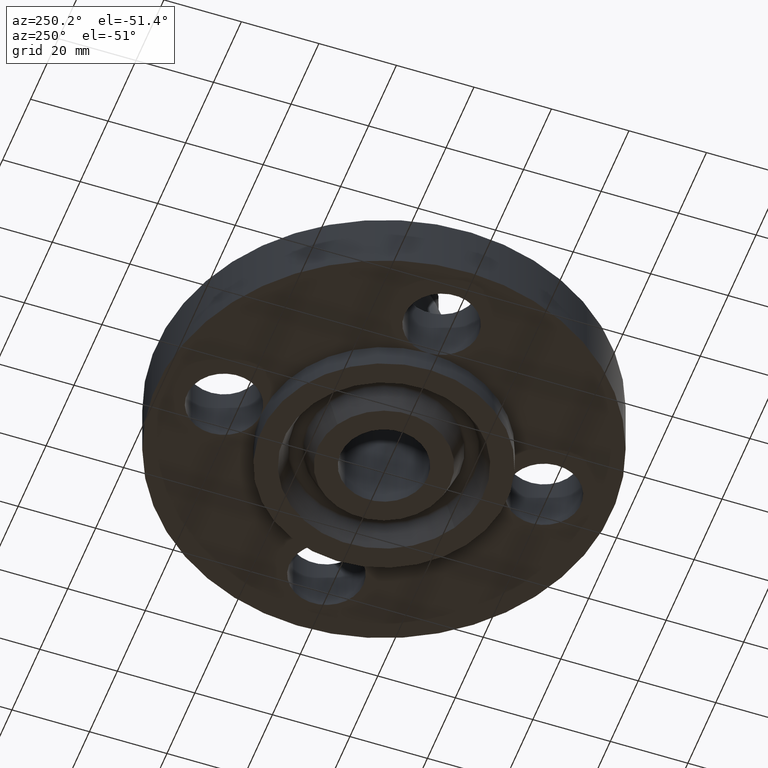
[diagram: clean part render]
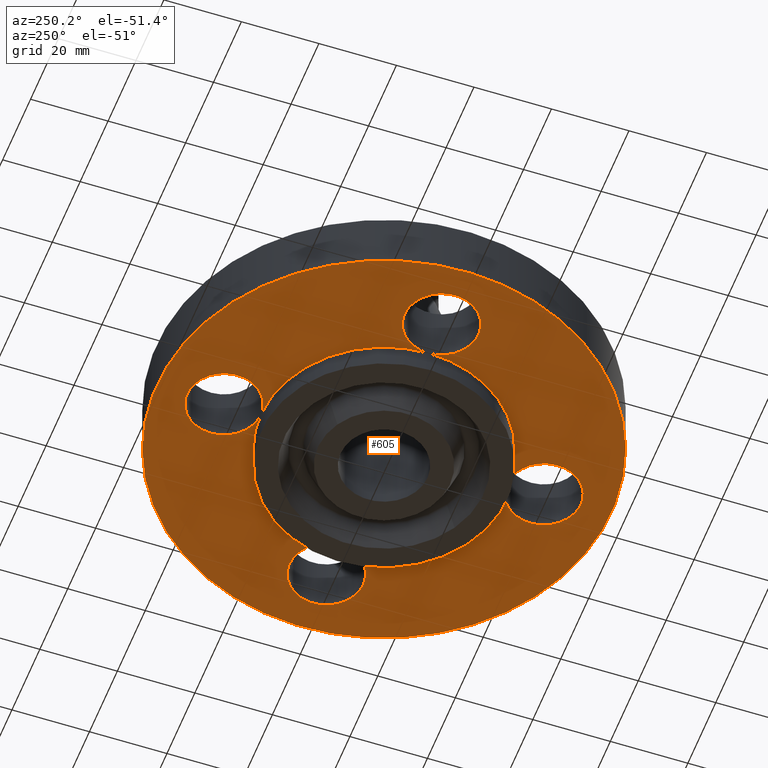
[diagram: same view with one face highlighted and labeled with its STEP entity id]
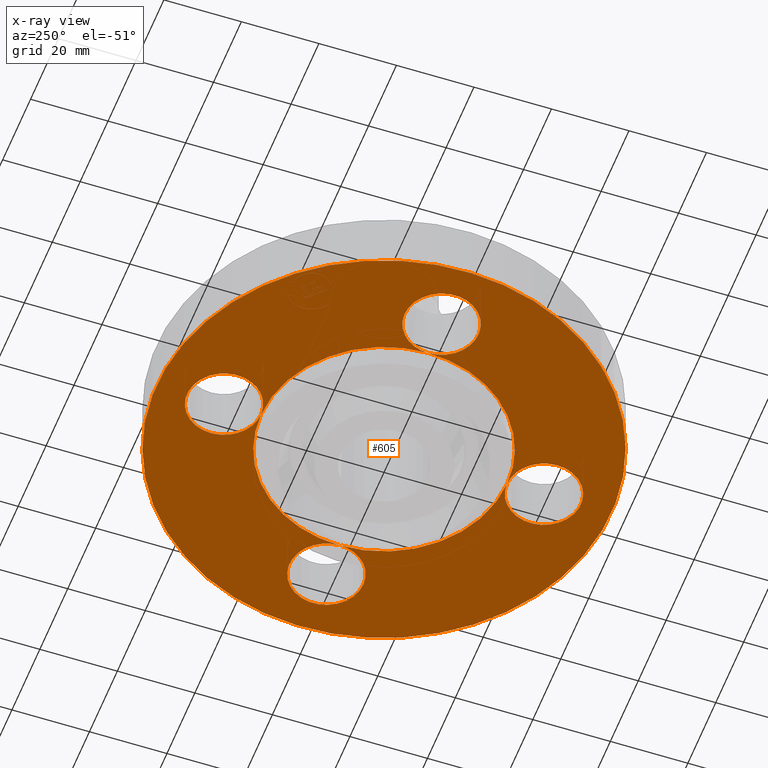
[diagram: x-ray of the same camera — body ghosted, the highlighted face saturated]
A machine part, auxiliary view. The second image highlights one B-rep face of the part: STEP entity #605.
The next image is the same camera in x-ray: the body ghosted, the highlighted face saturated — about 0% of this face is hidden behind the body in this view.
In plain terms, the highlighted planar face has unit normal (0, 0, -1).
Its self-contained STEP definition (entity closure, byte-faithful):
#51=AXIS2_PLACEMENT_3D('Circle Axis2P3D',#49,#50,$) ;
#77=AXIS2_PLACEMENT_3D('Circle Axis2P3D',#75,#76,$) ;
#84=AXIS2_PLACEMENT_3D('Circle Axis2P3D',#82,#83,$) ;
#107=AXIS2_PLACEMENT_3D('Circle Axis2P3D',#105,#106,$) ;
#142=AXIS2_PLACEMENT_3D('Circle Axis2P3D',#140,#141,$) ;
#455=AXIS2_PLACEMENT_3D('Circle Axis2P3D',#453,#454,$) ;
#462=AXIS2_PLACEMENT_3D('Circle Axis2P3D',#460,#461,$) ;
#467=AXIS2_PLACEMENT_3D('Circle Axis2P3D',#465,#466,$) ;
#493=AXIS2_PLACEMENT_3D('Circle Axis2P3D',#491,#492,$) ;
#500=AXIS2_PLACEMENT_3D('Circle Axis2P3D',#498,#499,$) ;
#507=AXIS2_PLACEMENT_3D('Circle Axis2P3D',#505,#506,$) ;
#522=AXIS2_PLACEMENT_3D('Plane Axis2P3D',#519,#520,#521) ;
#530=AXIS2_PLACEMENT_3D('Circle Axis2P3D',#528,#529,$) ;
#537=AXIS2_PLACEMENT_3D('Circle Axis2P3D',#535,#536,$) ;
#544=AXIS2_PLACEMENT_3D('Circle Axis2P3D',#542,#543,$) ;
#549=AXIS2_PLACEMENT_3D('Circle Axis2P3D',#547,#548,$) ;
#556=AXIS2_PLACEMENT_3D('Circle Axis2P3D',#554,#555,$) ;
#563=AXIS2_PLACEMENT_3D('Circle Axis2P3D',#561,#562,$) ;
#568=AXIS2_PLACEMENT_3D('Circle Axis2P3D',#566,#567,$) ;
#575=AXIS2_PLACEMENT_3D('Circle Axis2P3D',#573,#574,$) ;
#582=AXIS2_PLACEMENT_3D('Circle Axis2P3D',#580,#581,$) ;
#44=CARTESIAN_POINT('Vertex',(-0.32909346071,1.80478457698,0.)) ;
#49=CARTESIAN_POINT('Axis2P3D Location',(0.,1.62500000001,0.)) ;
#53=CARTESIAN_POINT('Vertex',(0.32909346071,1.44521542303,0.)) ;
#75=CARTESIAN_POINT('Axis2P3D Location',(0.,1.62500000001,0.)) ;
#79=CARTESIAN_POINT('Vertex',(3.90510912389E-015,1.25000000001,1.39870617276E-016)) ;
#82=CARTESIAN_POINT('Axis2P3D Location',(0.,1.62500000001,0.)) ;
#105=CARTESIAN_POINT('Axis2P3D Location',(0.,0.,1.39870617276E-016)) ;
#109=CARTESIAN_POINT('Vertex',(-1.10747299418,-2.02721571797,2.79741234551E-016)) ;
#111=CARTESIAN_POINT('Vertex',(1.10747299418,2.02721571797,2.79741234551E-016)) ;
#140=CARTESIAN_POINT('Axis2P3D Location',(0.,0.,1.39870617276E-016)) ;
#450=CARTESIAN_POINT('Vertex',(-0.599281923258,-1.09697820237,1.39870617276E-016)) ;
#453=CARTESIAN_POINT('Axis2P3D Location',(0.,0.,1.39870617276E-016)) ;
#457=CARTESIAN_POINT('Vertex',(-1.25000000001,-1.39870617276E-016,0.)) ;
#460=CARTESIAN_POINT('Axis2P3D Location',(0.,0.,1.39870617276E-016)) ;
#465=CARTESIAN_POINT('Axis2P3D Location',(0.,0.,1.39870617276E-016)) ;
#469=CARTESIAN_POINT('Vertex',(0.599281923258,1.09697820237,1.39870617276E-016)) ;
#491=CARTESIAN_POINT('Axis2P3D Location',(0.,0.,1.39870617276E-016)) ;
#495=CARTESIAN_POINT('Vertex',(1.25000000001,-1.39870617276E-016,0.)) ;
#498=CARTESIAN_POINT('Axis2P3D Location',(0.,0.,1.39870617276E-016)) ;
#502=CARTESIAN_POINT('Vertex',(2.02112938519E-016,-1.25000000001,0.)) ;
#505=CARTESIAN_POINT('Axis2P3D Location',(0.,0.,1.39870617276E-016)) ;
#519=CARTESIAN_POINT('Axis2P3D Location',(0.,1.25000000001,0.)) ;
#528=CARTESIAN_POINT('Axis2P3D Location',(2.70999320971E-016,-1.62500000001,0.)) ;
#532=CARTESIAN_POINT('Vertex',(-0.32909346071,-1.44521542303,0.)) ;
#535=CARTESIAN_POINT('Axis2P3D Location',(1.39870617276E-016,-1.62500000001,0.)) ;
#539=CARTESIAN_POINT('Vertex',(0.32909346071,-1.80478457698,0.)) ;
#542=CARTESIAN_POINT('Axis2P3D Location',(2.70999320971E-016,-1.62500000001,0.)) ;
#547=CARTESIAN_POINT('Axis2P3D Location',(1.62500000001,-1.39870617276E-016,0.)) ;
#551=CARTESIAN_POINT('Vertex',(1.44521542303,-0.32909346071,0.)) ;
#554=CARTESIAN_POINT('Axis2P3D Location',(1.62500000001,-1.39870617276E-016,0.)) ;
#558=CARTESIAN_POINT('Vertex',(1.80478457698,0.32909346071,0.)) ;
#561=CARTESIAN_POINT('Axis2P3D Location',(1.62500000001,-1.39870617276E-016,0.)) ;
#566=CARTESIAN_POINT('Axis2P3D Location',(-1.62500000001,-2.79741234551E-016,0.)) ;
#570=CARTESIAN_POINT('Vertex',(-1.44521542303,0.32909346071,0.)) ;
#573=CARTESIAN_POINT('Axis2P3D Location',(-1.62500000001,-2.79741234551E-016,0.)) ;
#577=CARTESIAN_POINT('Vertex',(-1.80478457698,-0.32909346071,0.)) ;
#580=CARTESIAN_POINT('Axis2P3D Location',(-1.62500000001,-2.79741234551E-016,0.)) ;
#50=DIRECTION('Axis2P3D Direction',(0.,-0.,-0.0393700787402)) ;
#76=DIRECTION('Axis2P3D Direction',(0.,-0.,-0.0393700787402)) ;
#83=DIRECTION('Axis2P3D Direction',(0.,-0.,-0.0393700787402)) ;
#106=DIRECTION('Axis2P3D Direction',(0.,0.,-0.0393700787402)) ;
#141=DIRECTION('Axis2P3D Direction',(0.,0.,-0.0393700787402)) ;
#454=DIRECTION('Axis2P3D Direction',(0.,0.,-0.0393700787402)) ;
#461=DIRECTION('Axis2P3D Direction',(0.,0.,-0.0393700787402)) ;
#466=DIRECTION('Axis2P3D Direction',(0.,0.,-0.0393700787402)) ;
#492=DIRECTION('Axis2P3D Direction',(0.,0.,-0.0393700787402)) ;
#499=DIRECTION('Axis2P3D Direction',(0.,0.,-0.0393700787402)) ;
#506=DIRECTION('Axis2P3D Direction',(0.,0.,-0.0393700787402)) ;
#520=DIRECTION('Axis2P3D Direction',(0.,0.,-0.0393700787402)) ;
#521=DIRECTION('Axis2P3D XDirection',(0.0393700787402,0.,0.)) ;
#529=DIRECTION('Axis2P3D Direction',(0.,0.,-0.0393700787402)) ;
#536=DIRECTION('Axis2P3D Direction',(0.,0.,-0.0393700787402)) ;
#543=DIRECTION('Axis2P3D Direction',(0.,0.,-0.0393700787402)) ;
#548=DIRECTION('Axis2P3D Direction',(0.,0.,-0.0393700787402)) ;
#555=DIRECTION('Axis2P3D Direction',(0.,0.,-0.0393700787402)) ;
#562=DIRECTION('Axis2P3D Direction',(0.,0.,-0.0393700787402)) ;
#567=DIRECTION('Axis2P3D Direction',(0.,0.,-0.0393700787402)) ;
#574=DIRECTION('Axis2P3D Direction',(0.,0.,-0.0393700787402)) ;
#581=DIRECTION('Axis2P3D Direction',(0.,0.,-0.0393700787402)) ;
#525=ORIENTED_EDGE('',*,*,#113,.T.) ;
#526=ORIENTED_EDGE('',*,*,#144,.T.) ;
#586=ORIENTED_EDGE('',*,*,#534,.F.) ;
#587=ORIENTED_EDGE('',*,*,#541,.F.) ;
#588=ORIENTED_EDGE('',*,*,#546,.F.) ;
#589=ORIENTED_EDGE('',*,*,#504,.F.) ;
#590=ORIENTED_EDGE('',*,*,#553,.F.) ;
#591=ORIENTED_EDGE('',*,*,#560,.F.) ;
#592=ORIENTED_EDGE('',*,*,#565,.F.) ;
#593=ORIENTED_EDGE('',*,*,#497,.F.) ;
#594=ORIENTED_EDGE('',*,*,#471,.F.) ;
#595=ORIENTED_EDGE('',*,*,#81,.F.) ;
#596=ORIENTED_EDGE('',*,*,#55,.F.) ;
#597=ORIENTED_EDGE('',*,*,#86,.F.) ;
#598=ORIENTED_EDGE('',*,*,#464,.F.) ;
#599=ORIENTED_EDGE('',*,*,#572,.F.) ;
#600=ORIENTED_EDGE('',*,*,#579,.F.) ;
#601=ORIENTED_EDGE('',*,*,#584,.F.) ;
#602=ORIENTED_EDGE('',*,*,#459,.F.) ;
#603=ORIENTED_EDGE('',*,*,#509,.F.) ;
#604=FACE_BOUND('',#585,.T.) ;
#605=ADVANCED_FACE('PartBody',(#527,#604),#523,.T.) ;
#52=CIRCLE('generated circle',#51,0.375000000001) ;
#78=CIRCLE('generated circle',#77,0.375000000001) ;
#85=CIRCLE('generated circle',#84,0.375000000001) ;
#108=CIRCLE('generated circle',#107,2.31000000001) ;
#143=CIRCLE('generated circle',#142,2.31000000001) ;
#456=CIRCLE('generated circle',#455,1.25000000001) ;
#463=CIRCLE('generated circle',#462,1.25000000001) ;
#468=CIRCLE('generated circle',#467,1.25000000001) ;
#494=CIRCLE('generated circle',#493,1.25000000001) ;
#501=CIRCLE('generated circle',#500,1.25000000001) ;
#508=CIRCLE('generated circle',#507,1.25000000001) ;
#531=CIRCLE('generated circle',#530,0.375000000001) ;
#538=CIRCLE('generated circle',#537,0.375000000001) ;
#545=CIRCLE('generated circle',#544,0.375000000001) ;
#550=CIRCLE('generated circle',#549,0.375000000001) ;
#557=CIRCLE('generated circle',#556,0.375000000001) ;
#564=CIRCLE('generated circle',#563,0.375000000001) ;
#569=CIRCLE('generated circle',#568,0.375000000001) ;
#576=CIRCLE('generated circle',#575,0.375000000001) ;
#583=CIRCLE('generated circle',#582,0.375000000001) ;
#55=EDGE_CURVE('',#45,#54,#52,.T.) ;
#81=EDGE_CURVE('',#54,#80,#78,.T.) ;
#86=EDGE_CURVE('',#80,#45,#85,.T.) ;
#113=EDGE_CURVE('',#110,#112,#108,.T.) ;
#144=EDGE_CURVE('',#112,#110,#143,.T.) ;
#459=EDGE_CURVE('',#451,#458,#456,.T.) ;
#464=EDGE_CURVE('',#458,#80,#463,.T.) ;
#471=EDGE_CURVE('',#80,#470,#468,.T.) ;
#497=EDGE_CURVE('',#470,#496,#494,.T.) ;
#504=EDGE_CURVE('',#496,#503,#501,.T.) ;
#509=EDGE_CURVE('',#503,#451,#508,.T.) ;
#534=EDGE_CURVE('',#533,#503,#531,.T.) ;
#541=EDGE_CURVE('',#540,#533,#538,.T.) ;
#546=EDGE_CURVE('',#503,#540,#545,.T.) ;
#553=EDGE_CURVE('',#552,#496,#550,.T.) ;
#560=EDGE_CURVE('',#559,#552,#557,.T.) ;
#565=EDGE_CURVE('',#496,#559,#564,.T.) ;
#572=EDGE_CURVE('',#571,#458,#569,.T.) ;
#579=EDGE_CURVE('',#578,#571,#576,.T.) ;
#584=EDGE_CURVE('',#458,#578,#583,.T.) ;
#524=EDGE_LOOP('',(#525,#526)) ;
#585=EDGE_LOOP('',(#586,#587,#588,#589,#590,#591,#592,#593,#594,#595,#596,#597,#598,#599,#600,#601,#602,#603)) ;
#527=FACE_OUTER_BOUND('',#524,.T.) ;
#523=PLANE('',#522) ;
#45=VERTEX_POINT('',#44) ;
#54=VERTEX_POINT('',#53) ;
#80=VERTEX_POINT('',#79) ;
#110=VERTEX_POINT('',#109) ;
#112=VERTEX_POINT('',#111) ;
#451=VERTEX_POINT('',#450) ;
#458=VERTEX_POINT('',#457) ;
#470=VERTEX_POINT('',#469) ;
#496=VERTEX_POINT('',#495) ;
#503=VERTEX_POINT('',#502) ;
#533=VERTEX_POINT('',#532) ;
#540=VERTEX_POINT('',#539) ;
#552=VERTEX_POINT('',#551) ;
#559=VERTEX_POINT('',#558) ;
#571=VERTEX_POINT('',#570) ;
#578=VERTEX_POINT('',#577) ;